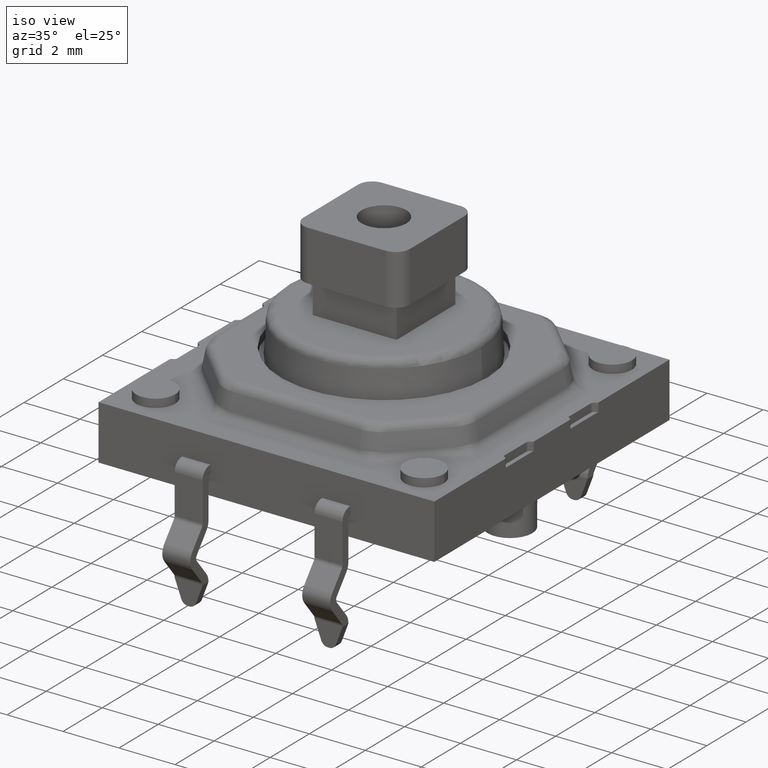
[diagram: clean part render]
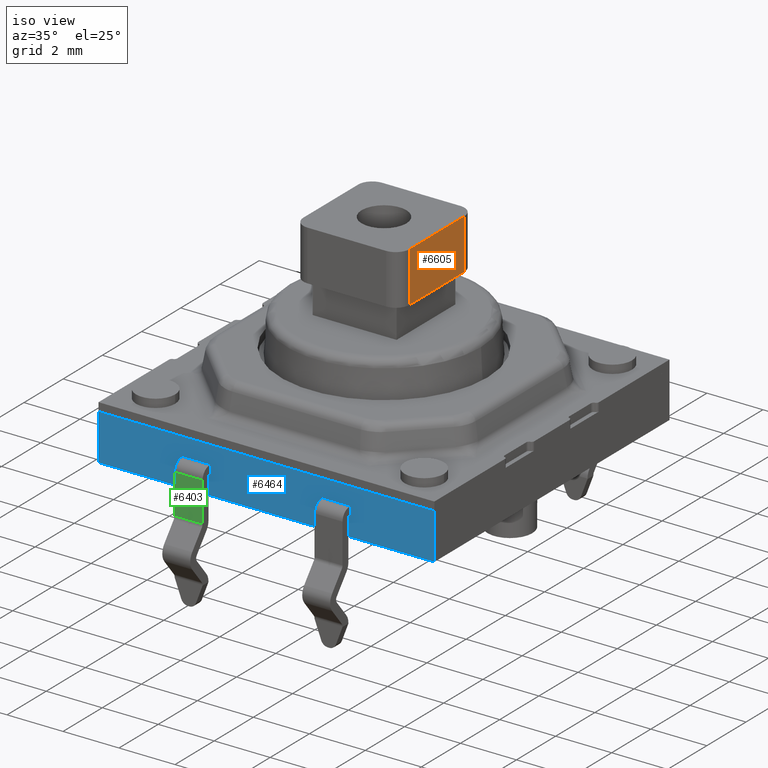
[diagram: same view with three faces highlighted in distinct colors, each labeled with its STEP entity id]
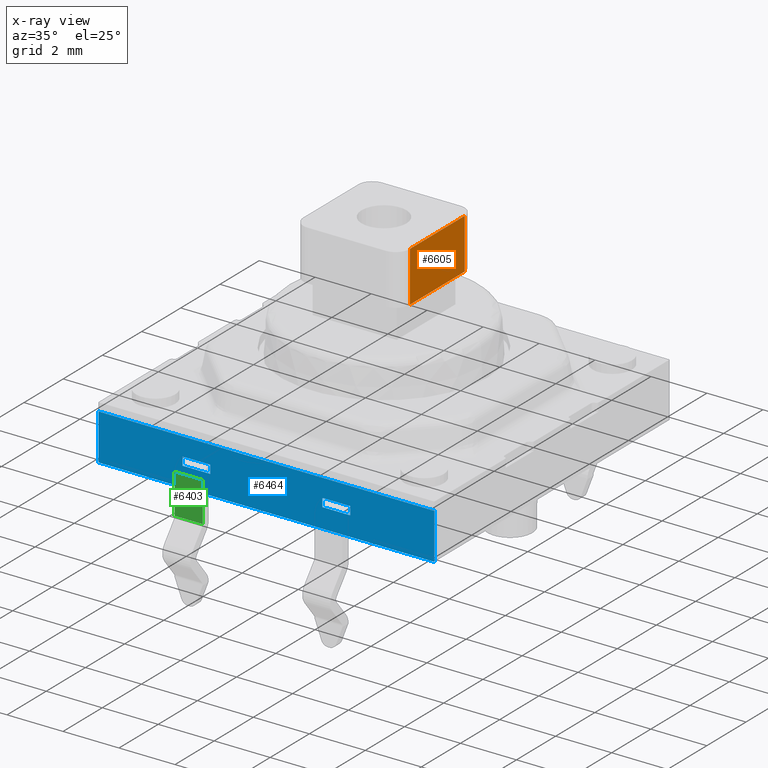
[diagram: x-ray of the same camera — body ghosted, the three highlighted faces saturated]
A machine part, iso view with three faces highlighted in distinct colors.
The next image is the same camera in x-ray (body ghosted, the three faces saturated) — at least one of them is partly hidden behind the body in this view.
Their STEP definitions:

[orange] entity #6605 — the highlighted planar face has unit normal (1, 0, 0).
#378=PLANE('',#7269);
#696=FACE_OUTER_BOUND('',#1129,.T.);
#1129=EDGE_LOOP('',(#5647,#5648,#5649,#5650));
#1702=LINE('',#11437,#2231);
#1703=LINE('',#11440,#2232);
#1704=LINE('',#11442,#2233);
#1705=LINE('',#11443,#2234);
#2231=VECTOR('',#9000,0.393700787401575);
#2232=VECTOR('',#9003,0.393700787401575);
#2233=VECTOR('',#9004,0.393700787401575);
#2234=VECTOR('',#9005,0.393700787401575);
#3102=VERTEX_POINT('',#11430);
#3105=VERTEX_POINT('',#11435);
#3106=VERTEX_POINT('',#11439);
#3107=VERTEX_POINT('',#11441);
#3969=EDGE_CURVE('',#3105,#3102,#1702,.T.);
#3970=EDGE_CURVE('',#3106,#3105,#1703,.T.);
#3971=EDGE_CURVE('',#3107,#3106,#1704,.T.);
#3972=EDGE_CURVE('',#3102,#3107,#1705,.T.);
#5647=ORIENTED_EDGE('',*,*,#3969,.F.);
#5648=ORIENTED_EDGE('',*,*,#3970,.F.);
#5649=ORIENTED_EDGE('',*,*,#3971,.F.);
#5650=ORIENTED_EDGE('',*,*,#3972,.F.);
#6605=ADVANCED_FACE('',(#696),#378,.T.);
#7269=AXIS2_PLACEMENT_3D('',#11438,#9001,#9002);
#9000=DIRECTION('',(-1.84889274661175E-32,1.11022302462516E-16,1.));
#9001=DIRECTION('center_axis',(1.,5.55111512312579E-17,1.23259516440783E-32));
#9002=DIRECTION('ref_axis',(-5.55111512312579E-17,1.,-1.11022302462516E-16));
#9003=DIRECTION('',(5.55111512312579E-17,-1.,1.11022302462516E-16));
#9004=DIRECTION('',(1.84889274661175E-32,-1.11022302462516E-16,-1.));
#9005=DIRECTION('',(-5.55111512312579E-17,1.,-1.11022302462516E-16));
#11430=CARTESIAN_POINT('',(-0.124659939896827,-0.250150506364981,0.351665874914242));
#11435=CARTESIAN_POINT('',(-0.124659939896827,-0.250150506364981,0.280799733181959));
#11437=CARTESIAN_POINT('',(-0.124659939896827,-0.250150506364981,0.280799733181959));
#11438=CARTESIAN_POINT('Origin',(-0.124659939896827,-0.26983554573506,0.280799733181959));
#11439=CARTESIAN_POINT('',(-0.124659939896827,-0.13991428589254,0.280799733181959));
#11440=CARTESIAN_POINT('',(-0.124659939896827,-0.120229246522462,0.280799733181959));
#11441=CARTESIAN_POINT('',(-0.124659939896827,-0.13991428589254,0.351665874914242));
#11442=CARTESIAN_POINT('',(-0.124659939896827,-0.13991428589254,0.280799733181959));
#11443=CARTESIAN_POINT('',(-0.124659939896827,-0.120229246522462,0.351665874914242));

[blue] entity #6464 — the highlighted planar face has unit normal (-0, -1, 0).
#208=FACE_BOUND('',#964,.T.);
#209=FACE_BOUND('',#965,.T.);
#340=PLANE('',#6994);
#555=FACE_OUTER_BOUND('',#963,.T.);
#963=EDGE_LOOP('',(#4964,#4965,#4966,#4967));
#964=EDGE_LOOP('',(#4968,#4969,#4970,#4971));
#965=EDGE_LOOP('',(#4972,#4973,#4974,#4975));
#1316=LINE('',#9705,#1845);
#1335=LINE('',#9775,#1864);
#1369=LINE('',#9915,#1898);
#1371=LINE('',#9919,#1900);
#1386=LINE('',#9956,#1915);
#1420=LINE('',#10049,#1949);
#1433=LINE('',#10082,#1962);
#1434=LINE('',#10084,#1963);
#1538=LINE('',#10330,#2067);
#1539=LINE('',#10333,#2068);
#1540=LINE('',#10335,#2069);
#1541=LINE('',#10336,#2070);
#1845=VECTOR('',#7646,0.393700787401575);
#1864=VECTOR('',#7701,0.393700787401575);
#1898=VECTOR('',#7849,0.393700787401575);
#1900=VECTOR('',#7853,0.393700787401575);
#1915=VECTOR('',#7896,0.393700787401575);
#1949=VECTOR('',#7994,0.393700787401575);
#1962=VECTOR('',#8033,0.393700787401575);
#1963=VECTOR('',#8036,0.393700787401575);
#2067=VECTOR('',#8286,0.393700787401575);
#2068=VECTOR('',#8289,0.393700787401575);
#2069=VECTOR('',#8290,0.393700787401575);
#2070=VECTOR('',#8291,0.393700787401575);
#2722=VERTEX_POINT('',#9702);
#2723=VERTEX_POINT('',#9704);
#2755=VERTEX_POINT('',#9772);
#2756=VERTEX_POINT('',#9774);
#2805=VERTEX_POINT('',#9914);
#2806=VERTEX_POINT('',#9918);
#2840=VERTEX_POINT('',#10046);
#2841=VERTEX_POINT('',#10048);
#2915=VERTEX_POINT('',#10324);
#2917=VERTEX_POINT('',#10328);
#2918=VERTEX_POINT('',#10332);
#2919=VERTEX_POINT('',#10334);
#3341=EDGE_CURVE('',#2723,#2722,#1316,.T.);
#3376=EDGE_CURVE('',#2756,#2755,#1335,.T.);
#3442=EDGE_CURVE('',#2805,#2723,#1369,.T.);
#3444=EDGE_CURVE('',#2722,#2806,#1371,.T.);
#3463=EDGE_CURVE('',#2806,#2805,#1386,.T.);
#3509=EDGE_CURVE('',#2841,#2840,#1420,.T.);
#3526=EDGE_CURVE('',#2840,#2756,#1433,.T.);
#3527=EDGE_CURVE('',#2755,#2841,#1434,.T.);
#3647=EDGE_CURVE('',#2915,#2917,#1538,.T.);
#3648=EDGE_CURVE('',#2915,#2918,#1539,.T.);
#3649=EDGE_CURVE('',#2919,#2917,#1540,.T.);
#3650=EDGE_CURVE('',#2918,#2919,#1541,.T.);
#4964=ORIENTED_EDGE('',*,*,#3648,.F.);
#4965=ORIENTED_EDGE('',*,*,#3647,.T.);
#4966=ORIENTED_EDGE('',*,*,#3649,.F.);
#4967=ORIENTED_EDGE('',*,*,#3650,.F.);
#4968=ORIENTED_EDGE('',*,*,#3341,.T.);
#4969=ORIENTED_EDGE('',*,*,#3444,.T.);
#4970=ORIENTED_EDGE('',*,*,#3463,.T.);
#4971=ORIENTED_EDGE('',*,*,#3442,.T.);
#4972=ORIENTED_EDGE('',*,*,#3509,.T.);
#4973=ORIENTED_EDGE('',*,*,#3526,.T.);
#4974=ORIENTED_EDGE('',*,*,#3376,.T.);
#4975=ORIENTED_EDGE('',*,*,#3527,.T.);
#6464=ADVANCED_FACE('',(#555,#208,#209),#340,.T.);
#6994=AXIS2_PLACEMENT_3D('',#10331,#8287,#8288);
#7646=DIRECTION('',(-8.32667268468867E-17,-1.11022302462516E-16,-1.));
#7701=DIRECTION('',(-8.32667268468867E-17,-1.11022302462516E-16,-1.));
#7849=DIRECTION('',(1.,-5.55111512312578E-17,-8.32667268468867E-17));
#7853=DIRECTION('',(-1.,5.55111512312578E-17,8.32667268468867E-17));
#7896=DIRECTION('',(8.32667268468867E-17,1.11022302462516E-16,1.));
#7994=DIRECTION('',(8.32667268468867E-17,1.11022302462516E-16,1.));
#8033=DIRECTION('',(1.,-5.55111512312578E-17,-8.32667268468867E-17));
#8036=DIRECTION('',(-1.,5.55111512312578E-17,8.32667268468867E-17));
#8286=DIRECTION('',(8.32667268468867E-17,1.11022302462516E-16,1.));
#8287=DIRECTION('center_axis',(-5.55111512312578E-17,-1.,1.11022302462516E-16));
#8288=DIRECTION('ref_axis',(1.,-5.55111512312578E-17,-8.32667268468867E-17));
#8289=DIRECTION('',(-1.,5.55111512312578E-17,8.32667268468867E-17));
#8290=DIRECTION('',(1.,-5.55111512312578E-17,-8.32667268468867E-17));
#8291=DIRECTION('',(8.32667268468867E-17,1.11022302462516E-16,1.));
#9702=CARTESIAN_POINT('',(-0.0813528532826533,-0.431252868569706,0.0937918591662105));
#9704=CARTESIAN_POINT('',(-0.0813528532826533,-0.431252868569706,0.105602882788258));
#9705=CARTESIAN_POINT('',(-0.0813528532826533,-0.431252868569706,0.0401481541061856));
#9772=CARTESIAN_POINT('',(-0.278203246983441,-0.431252868569706,0.0937918591662105));
#9774=CARTESIAN_POINT('',(-0.278203246983441,-0.431252868569706,0.105602882788258));
#9775=CARTESIAN_POINT('',(-0.278203246983441,-0.431252868569706,0.0401481541061856));
#9914=CARTESIAN_POINT('',(-0.120722932022811,-0.431252868569706,0.105602882788258));
#9915=CARTESIAN_POINT('',(-0.268360727298401,-0.431252868569706,0.105602882788258));
#9918=CARTESIAN_POINT('',(-0.120722932022811,-0.431252868569706,0.0937918591662105));
#9919=CARTESIAN_POINT('',(-0.268360727298401,-0.431252868569706,0.0937918591662105));
#9956=CARTESIAN_POINT('',(-0.120722932022811,-0.431252868569706,0.0401481541061856));
#10046=CARTESIAN_POINT('',(-0.317573325723598,-0.431252868569706,0.105602882788258));
#10048=CARTESIAN_POINT('',(-0.317573325723598,-0.431252868569706,0.0937918591662106));
#10049=CARTESIAN_POINT('',(-0.317573325723598,-0.431252868569706,0.0401481541061856));
#10082=CARTESIAN_POINT('',(-0.366785924148795,-0.431252868569706,0.105602882788258));
#10084=CARTESIAN_POINT('',(-0.366785924148795,-0.431252868569706,0.0937918591662106));
#10324=CARTESIAN_POINT('',(0.0367573829378192,-0.431252868569706,0.0662328040481003));
#10328=CARTESIAN_POINT('',(0.0367573829378192,-0.431252868569706,0.13119343396936));
#10330=CARTESIAN_POINT('',(0.0367573829378192,-0.431252868569706,0.0662328040481003));
#10331=CARTESIAN_POINT('Origin',(-0.435683561944071,-0.431252868569706,
0.0662328040481003));
#10332=CARTESIAN_POINT('',(-0.435683561944071,-0.431252868569706,0.0662328040481003));
#10333=CARTESIAN_POINT('',(0.0367573829378192,-0.431252868569706,0.0662328040481003));
#10334=CARTESIAN_POINT('',(-0.435683561944071,-0.431252868569706,0.13119343396936));
#10335=CARTESIAN_POINT('',(0.0367573829378192,-0.431252868569706,0.13119343396936));
#10336=CARTESIAN_POINT('',(-0.435683561944071,-0.431252868569706,0.0662328040481003));

[green] entity #6403 — the highlighted planar face has unit normal (-0, -1, 0).
#294=PLANE('',#6917);
#494=FACE_OUTER_BOUND('',#902,.T.);
#902=EDGE_LOOP('',(#4696,#4697,#4698,#4699));
#1337=LINE('',#9781,#1866);
#1418=LINE('',#10043,#1947);
#1430=LINE('',#10076,#1959);
#1431=LINE('',#10078,#1960);
#1866=VECTOR('',#7705,0.393700787401575);
#1947=VECTOR('',#7990,0.393700787401575);
#1959=VECTOR('',#8024,0.393700787401575);
#1960=VECTOR('',#8027,0.393700787401575);
#2758=VERTEX_POINT('',#9778);
#2759=VERTEX_POINT('',#9780);
#2837=VERTEX_POINT('',#10040);
#2838=VERTEX_POINT('',#10042);
#3379=EDGE_CURVE('',#2758,#2759,#1337,.T.);
#3506=EDGE_CURVE('',#2837,#2838,#1418,.T.);
#3523=EDGE_CURVE('',#2759,#2837,#1430,.T.);
#3524=EDGE_CURVE('',#2758,#2838,#1431,.T.);
#4696=ORIENTED_EDGE('',*,*,#3523,.F.);
#4697=ORIENTED_EDGE('',*,*,#3379,.F.);
#4698=ORIENTED_EDGE('',*,*,#3524,.T.);
#4699=ORIENTED_EDGE('',*,*,#3506,.F.);
#6403=ADVANCED_FACE('',(#494),#294,.T.);
#6917=AXIS2_PLACEMENT_3D('',#10077,#8025,#8026);
#7705=DIRECTION('',(-8.32667268468867E-17,-1.11022302462516E-16,-1.));
#7990=DIRECTION('',(8.32667268468867E-17,1.11022302462516E-16,1.));
#8024=DIRECTION('',(-1.,5.55111512312578E-17,8.32667268468867E-17));
#8025=DIRECTION('center_axis',(-5.55111512312578E-17,-1.,1.11022302462516E-16));
#8026=DIRECTION('ref_axis',(-8.32667268468867E-17,-1.11022302462516E-16,
-1.));
#8027=DIRECTION('',(-1.,5.55111512312578E-17,8.32667268468867E-17));
#9778=CARTESIAN_POINT('',(-0.278203246983441,-0.447000900065769,0.0918233552292027));
#9780=CARTESIAN_POINT('',(-0.278203246983441,-0.447000900065769,0.0361459626450829));
#9781=CARTESIAN_POINT('',(-0.278203246983441,-0.447000900065769,0.0361459626450829));
#10040=CARTESIAN_POINT('',(-0.317573325723598,-0.447000900065769,0.036145962645083));
#10042=CARTESIAN_POINT('',(-0.317573325723598,-0.447000900065769,0.0918233552292027));
#10043=CARTESIAN_POINT('',(-0.317573325723598,-0.447000900065769,0.036145962645083));
#10076=CARTESIAN_POINT('',(-0.297888286353519,-0.447000900065769,0.036145962645083));
#10077=CARTESIAN_POINT('Origin',(-0.297888286353519,-0.447000900065769,
0.0918233552292027));
#10078=CARTESIAN_POINT('',(-0.297888286353519,-0.447000900065769,0.0918233552292027));